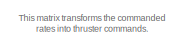
[diagram: root canvas - part 1/2, top left region]
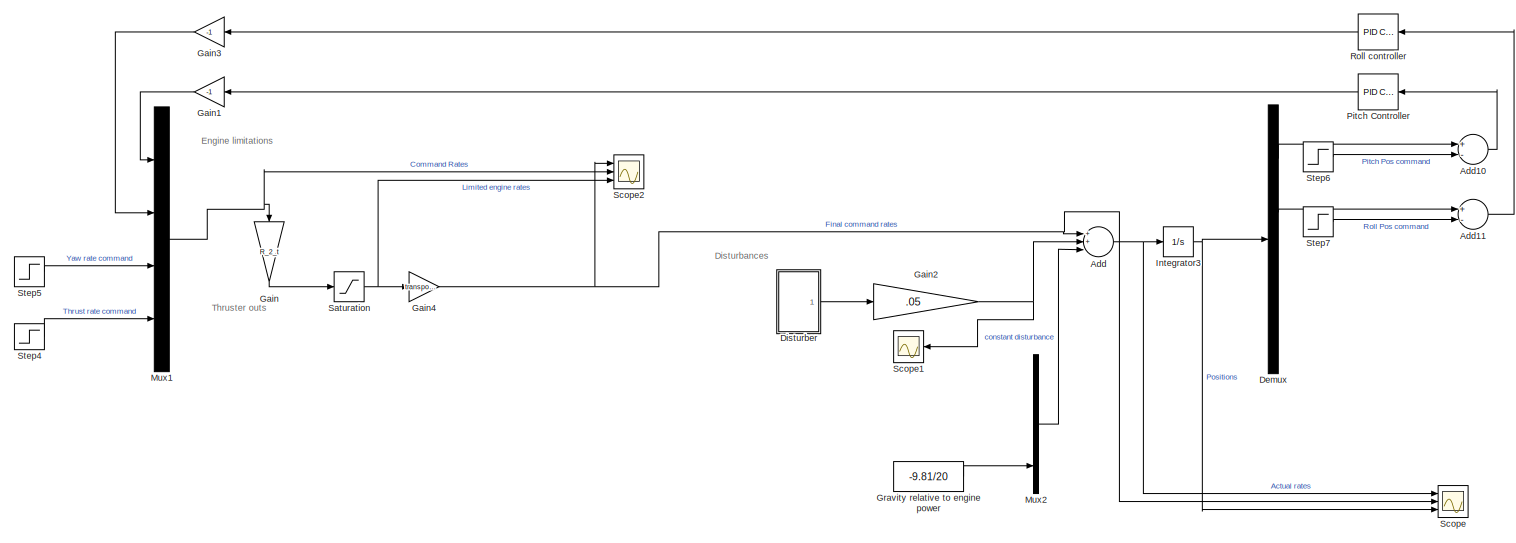
[diagram: root canvas - part 2/2, most of the canvas]
MODEL slx_a78f9095b1d0
KIND model
CONFIG AbsTol = auto
CONFIG EnableMultiTasking = off
CONFIG FixedStep = .1
CONFIG MaxStep = auto
CONFIG MinStep = auto
CONFIG RelTol = 1e-3
CONFIG SampleTimeConstraint = Unconstrained
CONFIG Solver = FixedStepAuto
CONFIG SolverName = FixedStepAuto
CONFIG StartTime = 0.0
CONFIG StopTime = 100.0
BLOCK [Sum] Add
  InputSameDT = off
  Inputs = 3
  OutDataTypeStr = Inherit: Inherit via internal rule
  Ports = [3, 1]
  SaturateOnIntegerOverflow = off
BLOCK [Sum] Add10
  InputSameDT = off
  Inputs = +-
  OutDataTypeStr = Inherit: Inherit via internal rule
  Ports = [2, 1]
  SaturateOnIntegerOverflow = off
BLOCK [Sum] Add11
  InputSameDT = off
  Inputs = +-
  OutDataTypeStr = Inherit: Inherit via internal rule
  Ports = [2, 1]
  SaturateOnIntegerOverflow = off
BLOCK [Demux] Demux
  DisplayOption = bar
  Ports = [1, 4]
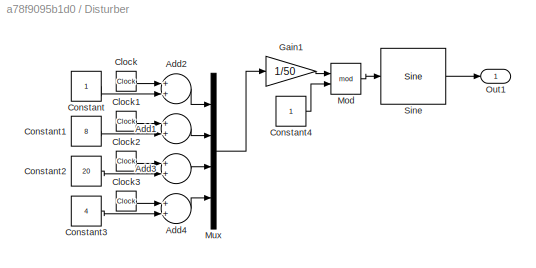
BLOCK [SubSystem] Disturber
  Ports = [0, 1]
  RequestExecContextInheritance = off
BLOCK [Sum] Disturber/Add1
  InputSameDT = off
  Inputs = 2
  OutDataTypeStr = Inherit: Inherit via internal rule
  Ports = [2, 1]
  SaturateOnIntegerOverflow = off
BLOCK [Sum] Disturber/Add2
  InputSameDT = off
  Inputs = 2
  OutDataTypeStr = Inherit: Inherit via internal rule
  Ports = [2, 1]
  SaturateOnIntegerOverflow = off
BLOCK [Sum] Disturber/Add3
  InputSameDT = off
  Inputs = 2
  OutDataTypeStr = Inherit: Inherit via internal rule
  Ports = [2, 1]
  SaturateOnIntegerOverflow = off
BLOCK [Sum] Disturber/Add4
  InputSameDT = off
  Inputs = 2
  OutDataTypeStr = Inherit: Inherit via internal rule
  Ports = [2, 1]
  SaturateOnIntegerOverflow = off
BLOCK [Clock] Disturber/Clock
  Decimation = 1
BLOCK [Clock] Disturber/Clock1
  Decimation = 1
BLOCK [Clock] Disturber/Clock2
  Decimation = 1
BLOCK [Clock] Disturber/Clock3
  Decimation = 1
BLOCK [Constant] Disturber/Constant
BLOCK [Constant] Disturber/Constant1
  Value = 8
BLOCK [Constant] Disturber/Constant2
  Value = 20
BLOCK [Constant] Disturber/Constant3
  Value = 4
BLOCK [Constant] Disturber/Constant4
BLOCK [Gain] Disturber/Gain1
  Gain = 1/50
  OutDataTypeStr = Inherit: Inherit via internal rule
  ParamDataTypeStr = Inherit: Inherit via internal rule
  SaturateOnIntegerOverflow = off
BLOCK [Math] Disturber/Mod
  Operator = mod
  Ports = [2, 1]
BLOCK [Mux] Disturber/Mux
  DisplayOption = bar
  Ports = [4, 1]
BLOCK [Outport] Disturber/Out1
  IconDisplay = Port number
BLOCK [Reference] Disturber/Sine  REF=simulink/Lookup
Tables/Sine
  Ports = [1, 1]
  SourceBlock = simulink/Lookup\nTables/Sine
  SourceProductBaseCode = SL
  SourceProductName = Simulink
  SourceType = Sine and Cosine
BLOCK [Gain] Gain
  Gain = R_2_t
  Multiplication = Matrix(K*u)
  OutDataTypeStr = Inherit: Inherit via internal rule
  ParamDataTypeStr = Inherit: Inherit via internal rule
  SaturateOnIntegerOverflow = off
BLOCK [Gain] Gain1
  Gain = -1
  OutDataTypeStr = Inherit: Inherit via internal rule
  ParamDataTypeStr = Inherit: Inherit via internal rule
  SaturateOnIntegerOverflow = off
BLOCK [Gain] Gain2
  Gain = .05
  OutDataTypeStr = Inherit: Inherit via internal rule
  ParamDataTypeStr = Inherit: Inherit via internal rule
  SaturateOnIntegerOverflow = off
BLOCK [Gain] Gain3
  Gain = -1
  OutDataTypeStr = Inherit: Inherit via internal rule
  ParamDataTypeStr = Inherit: Inherit via internal rule
  SaturateOnIntegerOverflow = off
BLOCK [Gain] Gain4
  Gain = transpose(R_2_t)
  Multiplication = Matrix(K*u)
  OutDataTypeStr = Inherit: Inherit via internal rule
  ParamDataTypeStr = Inherit: Inherit via internal rule
  SaturateOnIntegerOverflow = off
BLOCK [Constant] Gravity relative to engine power
  Value = -9.81/20
BLOCK [Integrator] Integrator3
  Ports = [1, 1]
BLOCK [Mux] Mux1
  DisplayOption = bar
  Ports = [4, 1]
BLOCK [Mux] Mux2
  DisplayOption = bar
  Ports = [4, 1]
BLOCK [Reference] Pitch Controller  REF=simulink/Continuous/PID Controller
  Ports = [1, 1]
  SourceBlock = simulink/Continuous/PID Controller
  SourceProductBaseCode = SL
  SourceProductName = Simulink
  SourceType = PID 1dof
BLOCK [Reference] Roll controller  REF=simulink/Continuous/PID Controller
  Ports = [1, 1]
  SourceBlock = simulink/Continuous/PID Controller
  SourceProductBaseCode = SL
  SourceProductName = Simulink
  SourceType = PID 1dof
BLOCK [Saturate] Saturation
  InputPortMap = u0
  LowerLimit = 0
  Ports = [1, 1]
  UpperLimit = 1
BLOCK [Scope] Scope
  Floating = off
  NumInputPorts = 3
  Ports = [3]
  ScopeSpecificationString = Simulink.scopes.TimeScopeBlockCfg('CurrentConfiguration', extmgr.ConfigurationSet(extmgr.Configuration('Core','General UI',true),extmgr.Configuration('Core','Source UI',true),extmgr.Configuration('Sources','WiredSimulink',true,'DataLoggingVariableName','ScopeData1'),extmgr.Configuration('Visuals','Time Domain',true,'SerializedDisplays',{struct('MinYLimReal','-5.46165','MaxYLimReal','7.52617','YLab...<+1961ch>
BLOCK [Scope] Scope1
  Floating = off
  NumInputPorts = 1
  Ports = [1]
  ScopeSpecificationString = Simulink.scopes.TimeScopeBlockCfg('CurrentConfiguration', extmgr.ConfigurationSet(extmgr.Configuration('Core','General UI',true),extmgr.Configuration('Core','Source UI',true),extmgr.Configuration('Sources','WiredSimulink',true),extmgr.Configuration('Visuals','Time Domain',true,'SerializedDisplays',{struct('MinYLimReal','-0.0625','MaxYLimReal','0.0625','YLabelReal','','MinYLimMag','0.00000','MaxYLi...<+1351ch>
BLOCK [Scope] Scope2
  Floating = off
  NumInputPorts = 3
  Ports = [3]
  ScopeSpecificationString = Simulink.scopes.TimeScopeBlockCfg('CurrentConfiguration', extmgr.ConfigurationSet(extmgr.Configuration('Core','General UI',true),extmgr.Configuration('Core','Source UI',true),extmgr.Configuration('Sources','WiredSimulink',true,'DataLoggingVariableName','ScopeData2'),extmgr.Configuration('Visuals','Time Domain',true,'SerializedDisplays',{struct('MinYLimReal','-31667.85917','MaxYLimReal','3547.14527...<+1955ch>
BLOCK [Step] Step4
  After = .5
  SampleTime = 0
BLOCK [Step] Step5
  After = 0
  SampleTime = 0
BLOCK [Step] Step6
  SampleTime = 0
BLOCK [Step] Step7
  After = 0
  SampleTime = 0
ANNOTATION (root): Disturbances
ANNOTATION (root): Engine limitations
ANNOTATION (root): This matrix transforms the commanded rates into thruster commands.
ANNOTATION (root): Thruster outs
LINE Add10:1 -> Pitch Controller:1
LINE Add11:1 -> Roll controller:1
NET Add:1 -> Integrator3:1, Scope:1
LINE Demux:1 -> Add10:1
LINE Demux:2 -> Add11:1
LINE Disturber/Add1:1 -> Disturber/Mux:2
LINE Disturber/Add2:1 -> Disturber/Mux:1
LINE Disturber/Add3:1 -> Disturber/Mux:3
LINE Disturber/Add4:1 -> Disturber/Mux:4
LINE Disturber/Clock1:1 -> Disturber/Add1:1
LINE Disturber/Clock2:1 -> Disturber/Add3:1
LINE Disturber/Clock3:1 -> Disturber/Add4:1
LINE Disturber/Clock:1 -> Disturber/Add2:1
LINE Disturber/Constant1:1 -> Disturber/Add1:2
LINE Disturber/Constant2:1 -> Disturber/Add3:2
LINE Disturber/Constant3:1 -> Disturber/Add4:2
LINE Disturber/Constant4:1 -> Disturber/Mod:2
LINE Disturber/Constant:1 -> Disturber/Add2:2
LINE Disturber/Gain1:1 -> Disturber/Mod:1
LINE Disturber/Mod:1 -> Disturber/Sine:1
LINE Disturber/Mux:1 -> Disturber/Gain1:1
LINE Disturber/Sine:1 -> Disturber/Out1:1
LINE Disturber:1 -> Gain2:1
LINE Gain1:1 -> Mux1:1
NET Gain2:1 -> Add:2, Scope1:1
LINE Gain3:1 -> Mux1:2
NET Gain4:1 -> Add:1, Scope2:1, Scope:2
LINE Gain:1 -> Saturation:1
LINE Gravity relative to engine power:1 -> Mux2:4
NET Integrator3:1 -> Demux:1, Scope:3
NET Mux1:1 -> Gain:1, Scope2:2
LINE Mux2:1 -> Add:3
LINE Pitch Controller:1 -> Gain1:1
LINE Roll controller:1 -> Gain3:1
NET Saturation:1 -> Gain4:1, Scope2:3
LINE Step4:1 -> Mux1:4
LINE Step5:1 -> Mux1:3
LINE Step6:1 -> Add10:2
LINE Step7:1 -> Add11:2
note: NET lines group one-source signal fan-out (src -> all destinations, sorted); 1:1 wires keep LINE
